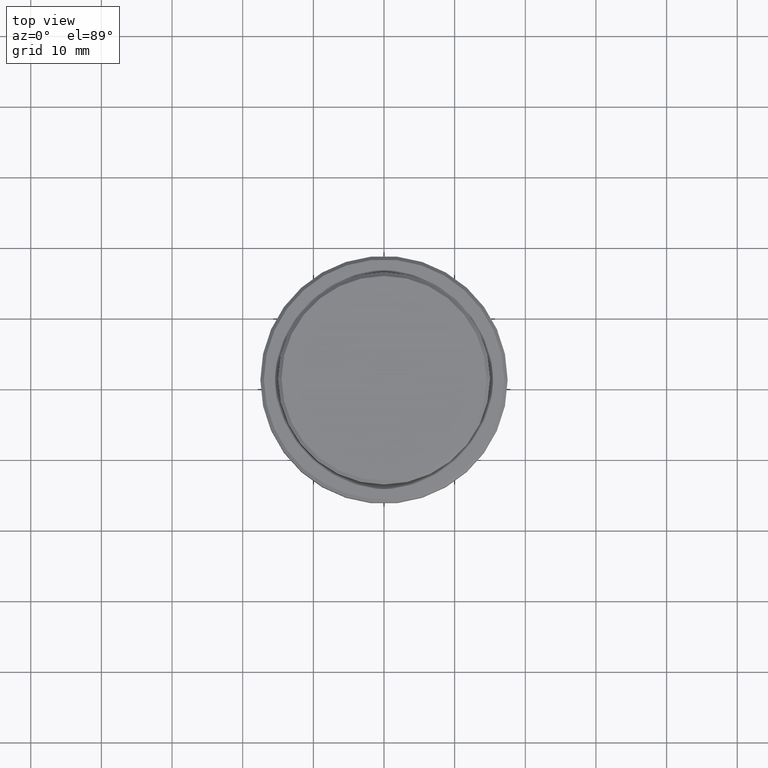
[diagram: clean part render]
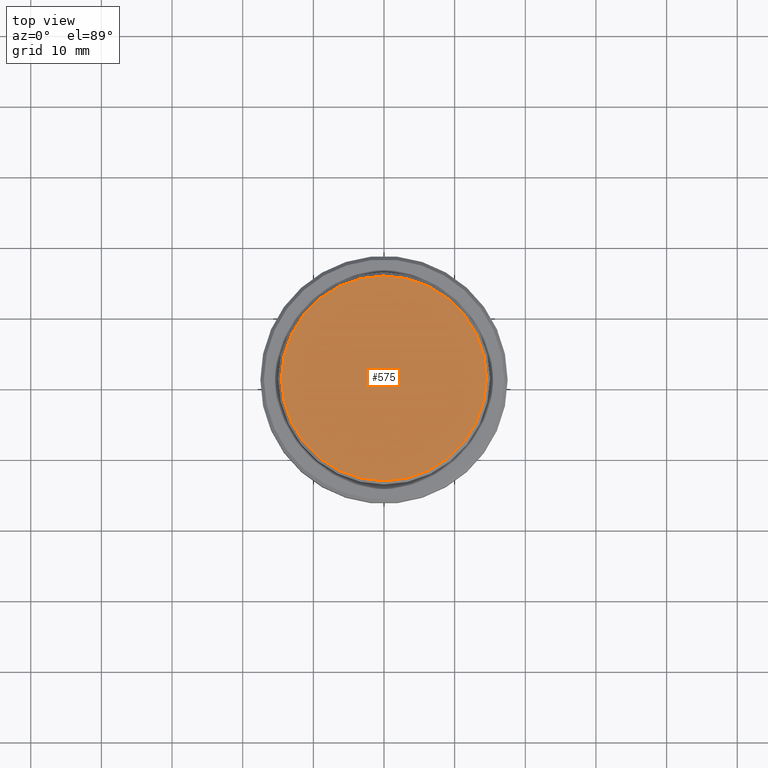
[diagram: same view with one face highlighted and labeled with its STEP entity id]
A machine part, top view. The second image highlights one B-rep face of the part: STEP entity #575.
In plain terms, the highlighted planar face has unit normal (0, -0, 1).
Its self-contained STEP definition (entity closure, byte-faithful):
#19 = CARTESIAN_POINT ( 'NONE',  ( 14.50000000000001066, 1.806354028742346591E-15, 0.000000000000000000 ) ) ;
#261 = EDGE_CURVE ( 'NONE', #824, #400, #495, .T. ) ;
#264 = DIRECTION ( 'NONE',  ( 1.000000000000000000, 0.000000000000000000, 0.000000000000000000 ) ) ;
#372 = CARTESIAN_POINT ( 'NONE',  ( 0.000000000000000000, 0.000000000000000000, 0.000000000000000000 ) ) ;
#400 = VERTEX_POINT ( 'NONE', #19 ) ;
#429 = AXIS2_PLACEMENT_3D ( 'NONE', #539, #991, #1313 ) ;
#494 = EDGE_LOOP ( 'NONE', ( #756, #600 ) ) ;
#495 = CIRCLE ( 'NONE', #429, 14.50000000000001066 ) ;
#539 = CARTESIAN_POINT ( 'NONE',  ( 0.000000000000000000, 0.000000000000000000, 0.000000000000000000 ) ) ;
#555 = EDGE_CURVE ( 'NONE', #400, #824, #1098, .T. ) ;
#575 = ADVANCED_FACE ( 'NONE', ( #823 ), #1131, .T. ) ;
#587 = CARTESIAN_POINT ( 'NONE',  ( 0.000000000000000000, 0.000000000000000000, 0.000000000000000000 ) ) ;
#600 = ORIENTED_EDGE ( 'NONE', *, *, #555, .T. ) ;
#756 = ORIENTED_EDGE ( 'NONE', *, *, #261, .T. ) ;
#817 = DIRECTION ( 'NONE',  ( 1.000000000000000000, 0.000000000000000000, 0.000000000000000000 ) ) ;
#823 = FACE_OUTER_BOUND ( 'NONE', #494, .T. ) ;
#824 = VERTEX_POINT ( 'NONE', #1212 ) ;
#879 = AXIS2_PLACEMENT_3D ( 'NONE', #587, #1127, #264 ) ;
#991 = DIRECTION ( 'NONE',  ( -0.000000000000000000, -0.000000000000000000, 1.000000000000000000 ) ) ;
#1098 = CIRCLE ( 'NONE', #1275, 14.50000000000001066 ) ;
#1127 = DIRECTION ( 'NONE',  ( 0.000000000000000000, -0.000000000000000000, 1.000000000000000000 ) ) ;
#1131 = PLANE ( 'NONE',  #879 ) ;
#1212 = CARTESIAN_POINT ( 'NONE',  ( -14.50000000000001066, 0.000000000000000000, 0.000000000000000000 ) ) ;
#1242 = DIRECTION ( 'NONE',  ( -0.000000000000000000, -0.000000000000000000, 1.000000000000000000 ) ) ;
#1275 = AXIS2_PLACEMENT_3D ( 'NONE', #372, #1242, #817 ) ;
#1313 = DIRECTION ( 'NONE',  ( 1.000000000000000000, 0.000000000000000000, 0.000000000000000000 ) ) ;